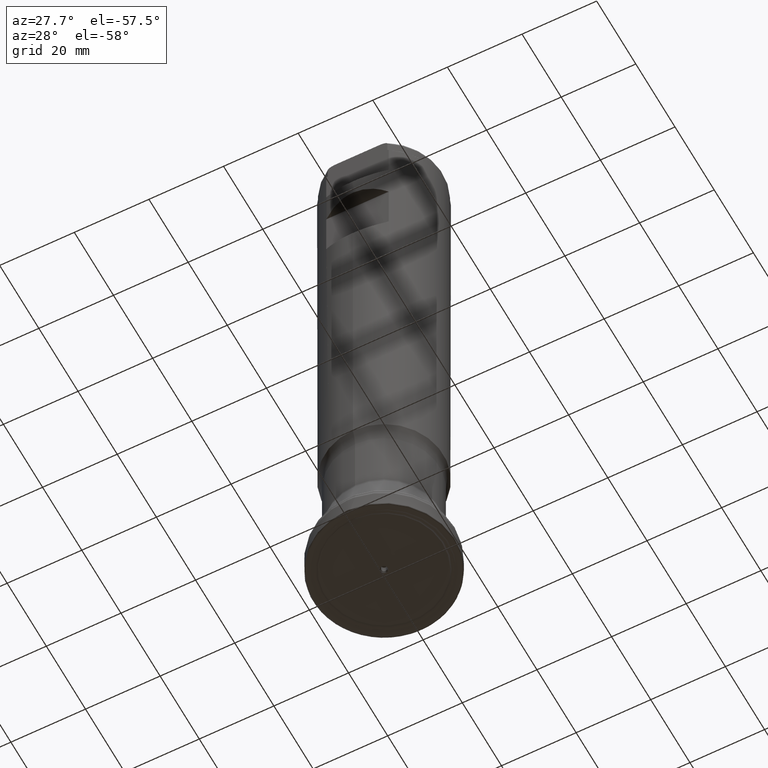
[diagram: clean part render]
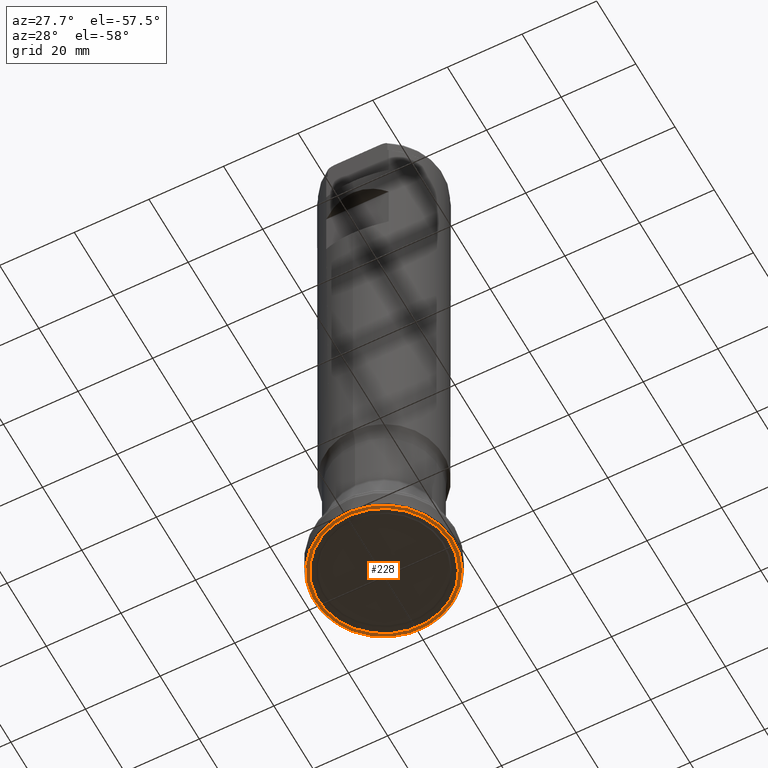
[diagram: same view with one face highlighted and labeled with its STEP entity id]
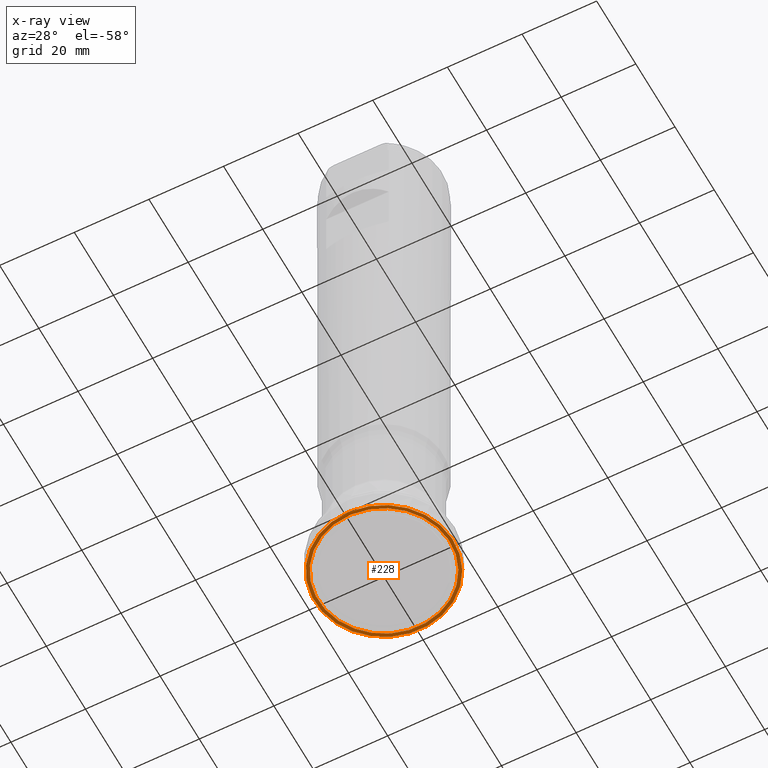
[diagram: x-ray of the same camera — body ghosted, the highlighted face saturated]
A machine part, auxiliary view. The second image highlights one B-rep face of the part: STEP entity #228.
The next image is the same camera in x-ray: the body ghosted, the highlighted face saturated — about 0% of this face is hidden behind the body in this view.
In plain terms, the highlighted face is a SurfaceOfRevolution surface.
Its self-contained STEP definition (entity closure, byte-faithful):
#119=SURFACE_OF_REVOLUTION('',#475,#140);
#140=AXIS1_PLACEMENT('',#1586,#1050);
#228=ADVANCED_FACE('',(#349,#350),#119,.F.);
#278=CIRCLE('',#876,17.6503983570115);
#279=CIRCLE('',#877,18.5747922718798);
#349=FACE_BOUND('',#439,.T.);
#350=FACE_BOUND('',#440,.T.);
#439=EDGE_LOOP('',(#616));
#440=EDGE_LOOP('',(#617));
#475=LINE('',#1585,#494);
#494=VECTOR('',#1049,0.937230343139927);
#616=ORIENTED_EDGE('',*,*,#754,.T.);
#617=ORIENTED_EDGE('',*,*,#755,.F.);
#686=VERTEX_POINT('',#1574);
#687=VERTEX_POINT('',#1584);
#754=EDGE_CURVE('',#686,#686,#278,.T.);
#755=EDGE_CURVE('',#687,#687,#279,.T.);
#876=AXIS2_PLACEMENT_3D('',#1573,#1044,#1045);
#877=AXIS2_PLACEMENT_3D('',#1583,#1047,#1048);
#1044=DIRECTION('',(0.,1.17145536458252E-15,1.));
#1045=DIRECTION('',(0.,-1.,1.17147051625671E-15));
#1047=DIRECTION('',(0.,1.17145536458252E-15,1.));
#1048=DIRECTION('',(0.,-1.,1.17145536458252E-15));
#1049=DIRECTION('',(-0.999989436861154,0.000798142753870695,0.00452649248948531));
#1050=DIRECTION('',(0.,1.17145536458252E-15,1.));
#1573=CARTESIAN_POINT('',(0.,4.9697361719492E-18,0.00424236067562018));
#1574=CARTESIAN_POINT('',(0.,-17.6503983570115,0.00424236067564085));
#1583=CARTESIAN_POINT('',(0.,5.09724624693135E-30,4.35120825004534E-15));
#1584=CARTESIAN_POINT('',(0.,-18.5747922718798,2.6110748302945E-14));
#1585=CARTESIAN_POINT('',(18.3309276345603,-2.99999999999999,7.8655743437929E-15));
#1586=CARTESIAN_POINT('',(0.,0.,0.));